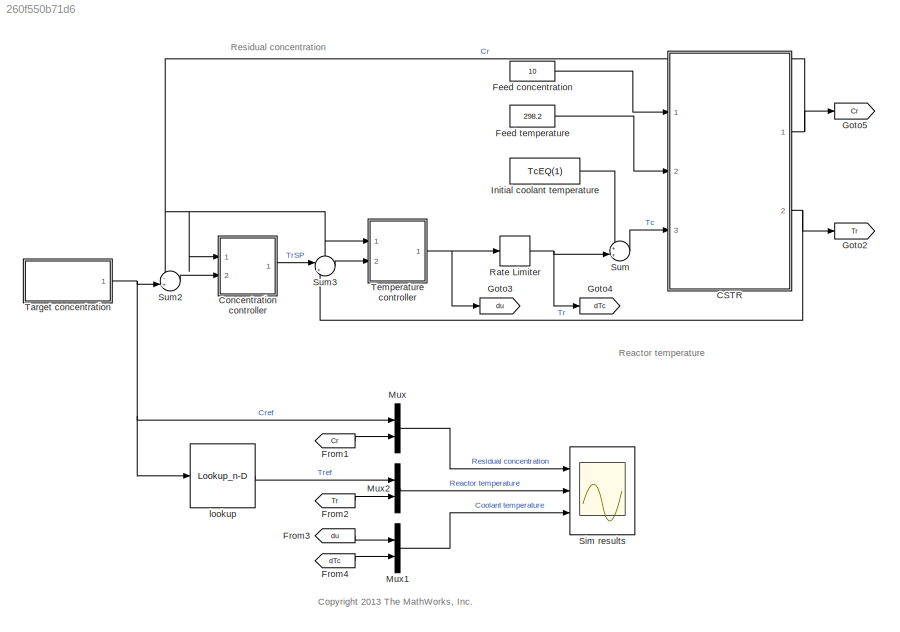
MODEL slx_260f550b71d6
KIND model
CONFIG AbsTol = auto
CONFIG EnableMultiTasking = on
CONFIG FixedStep = auto
CONFIG MaxStep = auto
CONFIG MinStep = auto
CONFIG PreLoadFcn = Ts = 0.5;\nload CSTRData
CONFIG RelTol = 1e-3
CONFIG SampleTimeConstraint = Unconstrained
CONFIG SolverName = ode45
CONFIG StartTime = 0
CONFIG StopTime = 50
WORKSPACE source: mxarray member
WORKSPACE Cr_vec = [2 2.5 3 3.5 4 4.5 5 5.5 6 6.5 7 7.5 ... (15 elements, 1x15)]
WORKSPACE Ki_vec = [-2 -2 -2 -2 -2 -2 -2 -2 -2 -2 -2 -2 ... (15 elements, 1x15)]
WORKSPACE Kp_vec = [0 0 0 0 0 0 0 0 0 0 0 0 ... (15 elements, 1x15)]
WORKSPACE Kt_vec = [0 0 0 0 0 0 0 0 0 0 0 0 ... (15 elements, 1x15)]
WORKSPACE a_vec = [0 0 0 0 0 0 0 0 0 0 0 0 ... (15 elements, 1x15)]
WORKSPACE b_vec = [0 0 0 0 0 0 0 0 0 0 0 0 ... (15 elements, 1x15)]
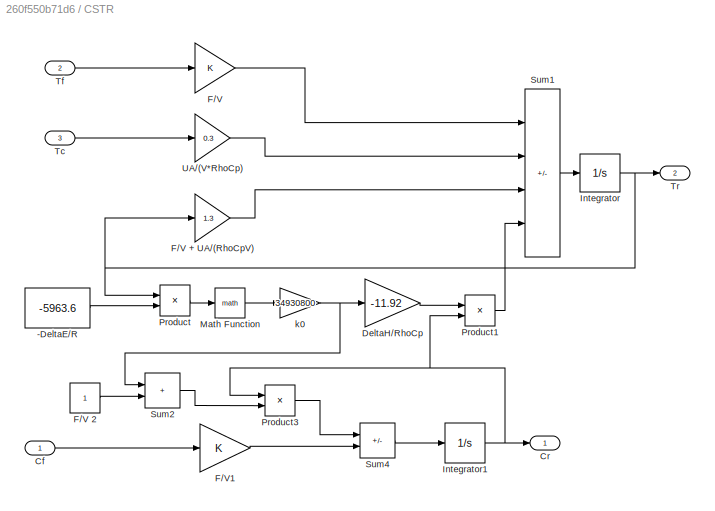
BLOCK [SubSystem] CSTR
  Ports = [3, 2]
  RequestExecContextInheritance = off
BLOCK [Constant] CSTR/-DeltaE//R
  SampleTime = 0
  Value = -5963.6
BLOCK [Inport] CSTR/Cf
BLOCK [Outport] CSTR/Cr
BLOCK [Gain] CSTR/DeltaH//RhoCp
  Gain = -11.92
  OutDataTypeStr = Inherit: Same as input
  ParamDataTypeStr = Inherit: Same as input
  SaturateOnIntegerOverflow = on
BLOCK [Gain] CSTR/F//V
  OutDataTypeStr = Inherit: Same as input
  ParamDataTypeStr = Inherit: Same as input
  SaturateOnIntegerOverflow = on
BLOCK [Gain] CSTR/F//V + UA//(RhoCpV)
  Gain = 1.3
  OutDataTypeStr = Inherit: Same as input
  ParamDataTypeStr = Inherit: Same as input
  SaturateOnIntegerOverflow = on
BLOCK [Constant] CSTR/F//V 2
  SampleTime = 0
BLOCK [Gain] CSTR/F//V1
  OutDataTypeStr = Inherit: Same as input
  ParamDataTypeStr = Inherit: Same as input
  SaturateOnIntegerOverflow = on
BLOCK [Integrator] CSTR/Integrator
  InitialCondition = 311.26
  LimitOutput = on
  LowerSaturationLimit = 0
  Ports = [1, 1]
BLOCK [Integrator] CSTR/Integrator1
  InitialCondition = 8.57
  LimitOutput = on
  LowerSaturationLimit = 0
  Ports = [1, 1]
BLOCK [Math] CSTR/Math Function
  Ports = [1, 1]
  SignedPower = on
BLOCK [Product] CSTR/Product
  InputSameDT = on
  Inputs = /*
  OutDataTypeStr = Inherit: Same as first input
  Ports = [2, 1]
  RndMeth = Zero
  SaturateOnIntegerOverflow = on
BLOCK [Product] CSTR/Product1
  InputSameDT = on
  OutDataTypeStr = Inherit: Same as first input
  Ports = [2, 1]
  RndMeth = Zero
  SaturateOnIntegerOverflow = on
BLOCK [Product] CSTR/Product3
  InputSameDT = on
  OutDataTypeStr = Inherit: Same as first input
  Ports = [2, 1]
  RndMeth = Zero
  SaturateOnIntegerOverflow = on
BLOCK [Sum] CSTR/Sum1
  IconShape = rectangular
  InputSameDT = on
  Inputs = ++--
  OutDataTypeStr = Inherit: Same as first input
  Ports = [4, 1]
  SaturateOnIntegerOverflow = on
BLOCK [Sum] CSTR/Sum2
  IconShape = rectangular
  InputSameDT = on
  OutDataTypeStr = Inherit: Same as first input
  Ports = [2, 1]
  SaturateOnIntegerOverflow = on
BLOCK [Sum] CSTR/Sum4
  IconShape = rectangular
  InputSameDT = on
  Inputs = -+
  OutDataTypeStr = Inherit: Same as first input
  Ports = [2, 1]
  SaturateOnIntegerOverflow = on
BLOCK [Inport] CSTR/Tc
  Port = 3
BLOCK [Inport] CSTR/Tf
  Port = 2
BLOCK [Outport] CSTR/Tr
  Port = 2
BLOCK [Gain] CSTR/UA//(V*RhoCp)
  Gain = 0.3
  OutDataTypeStr = Inherit: Same as input
  ParamDataTypeStr = Inherit: Same as input
  SaturateOnIntegerOverflow = on
BLOCK [Gain] CSTR/k0
  Gain = 34930800
  OutDataTypeStr = Inherit: Same as input
  ParamDataTypeStr = Inherit: Same as input
  SaturateOnIntegerOverflow = on
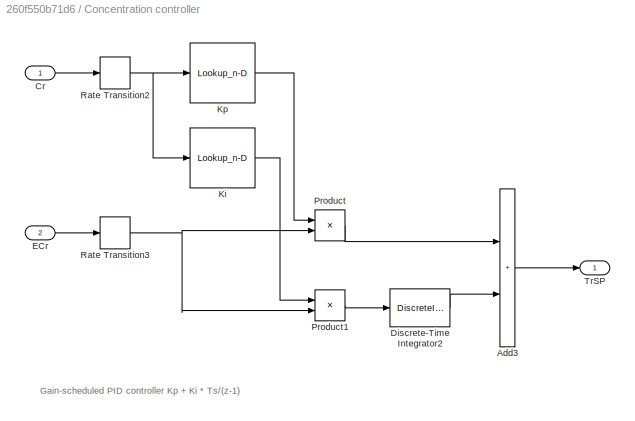
BLOCK [SubSystem] Concentration controller
  Ports = [2, 1]
  RequestExecContextInheritance = off
BLOCK [Sum] Concentration controller/Add3
  IconShape = rectangular
  Ports = [2, 1]
BLOCK [Inport] Concentration controller/Cr
BLOCK [DiscreteIntegrator] Concentration controller/Discrete-Time Integrator2
  ICPrevOutput = DiscIntNeverNeededParam
  ICPrevScaledInput = DiscIntNeverNeededParam
  InitialCondition = TrEQ(1)
  Ports = [1, 1]
  SampleTime = Ts
BLOCK [Inport] Concentration controller/ECr
  Port = 2
BLOCK [Lookup_n-D] Concentration controller/Ki
  BreakpointsForDimension1 = Cr_vec
  InputPortMap = u0
  InternalRulePriority = Speed
  LookupTableObject = ''
  NumberOfTableDimensions = 1
  Ports = [1, 1]
  RndMeth = Simplest
  Table = Ki_vec
BLOCK [Lookup_n-D] Concentration controller/Kp
  BreakpointsForDimension1 = Cr_vec
  InputPortMap = u0
  InternalRulePriority = Speed
  LookupTableObject = ''
  NumberOfTableDimensions = 1
  Ports = [1, 1]
  RndMeth = Simplest
  Table = Kp_vec
BLOCK [Product] Concentration controller/Product
  Ports = [2, 1]
BLOCK [Product] Concentration controller/Product1
  Ports = [2, 1]
BLOCK [RateTransition] Concentration controller/Rate Transition2
  OutPortSampleTime = Ts
BLOCK [RateTransition] Concentration controller/Rate Transition3
  OutPortSampleTime = Ts
BLOCK [Outport] Concentration controller/TrSP
BLOCK [Constant] Feed concentration
  SampleTime = 0
  Value = 10
BLOCK [Constant] Feed temperature
  SampleTime = 0
  Value = 298.2
BLOCK [From] From1
  GotoTag = Cr
  TagVisibility = global
BLOCK [From] From2
  GotoTag = Tr
BLOCK [From] From3
  GotoTag = du
BLOCK [From] From4
  GotoTag = dTc
BLOCK [Goto] Goto2
  GotoTag = Tr
BLOCK [Goto] Goto3
  GotoTag = du
BLOCK [Goto] Goto4
  GotoTag = dTc
BLOCK [Goto] Goto5
  GotoTag = Cr
  TagVisibility = global
BLOCK [Constant] Initial coolant temperature
  SampleTime = 0
  Value = TcEQ(1)
BLOCK [Mux] Mux
  DisplayOption = bar
  Inputs = 2
  Ports = [2, 1]
BLOCK [Mux] Mux1
  DisplayOption = bar
  Inputs = 2
  Ports = [2, 1]
BLOCK [Mux] Mux2
  DisplayOption = bar
  Inputs = 2
  Ports = [2, 1]
BLOCK [RateLimiter] Rate Limiter
  FallingSlewLimit = -10
  RisingSlewLimit = 10
  SampleTimeMode = inherited
BLOCK [Scope] Sim results
  Floating = off
  NumInputPorts = 3
  Ports = [3]
  ScopeSpecificationString = Simulink.scopes.TimeScopeBlockCfg('CurrentConfiguration', extmgr.ConfigurationSet(extmgr.Configuration('Core','General UI',true),extmgr.Configuration('Core','Source UI',true),extmgr.Configuration('Sources','WiredSimulink',true,'SampleTime','Ts'),extmgr.Configuration('Visuals','Time Domain',true,'SerializedDisplays',{struct('MinYLimReal','1.17874','MaxYLimReal','9.39131','YLabelReal','','MinYLimMag...<+2822ch>
BLOCK [Sum] Sum
  Inputs = ++|
  Ports = [2, 1]
BLOCK [Sum] Sum2
  Inputs = -+|
  Ports = [2, 1]
BLOCK [Sum] Sum3
  Inputs = |+-
  Ports = [2, 1]
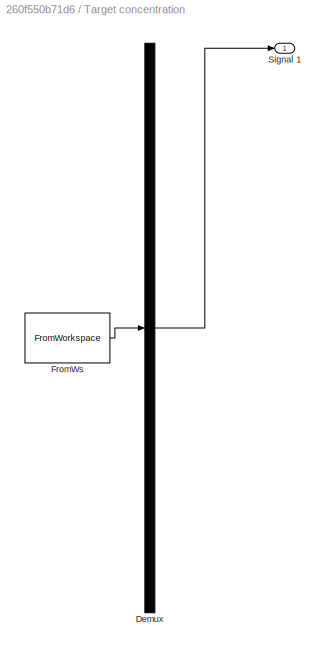
BLOCK [SubSystem] Target concentration
  ClipboardFcn = sigbuilder_block('clipboard');
  CloseFcn = sigbuilder_block('close');
  ContinueFcn = sigbuilder_block('continue');
  CopyFcn = sigbuilder_block('copy');
  DeleteFcn = sigbuilder_block('delete');
  LoadFcn = sigbuilder_block('load');
  MaskHideContents = on
  ModelCloseFcn = sigbuilder_block('modelClose');
  NameChangeFcn = sigbuilder_block('namechange');
  OpenFcn = sigbuilder_block('open',[358.5 207 550.5 395.25 ]);
  PauseFcn = sigbuilder_block('pause');
  Ports = [0, 1]
  PreSaveFcn = sigbuilder_block('preSave');
  RequestExecContextInheritance = off
  StartFcn = sigbuilder_block('start');
  StopFcn = sigbuilder_block('stop');
  Tag = STV Subsys
BLOCK [Demux] Target concentration/Demux
  DisplayOption = none
  Outputs = 1
  Ports = [1, 1]
  Tag = STV Demux
BLOCK [FromWorkspace] Target concentration/FromWs
  Tag = STV FromWs
  VariableName = tuvar
BLOCK [Outport] Target concentration/Signal 1
  Tag = STV Outport
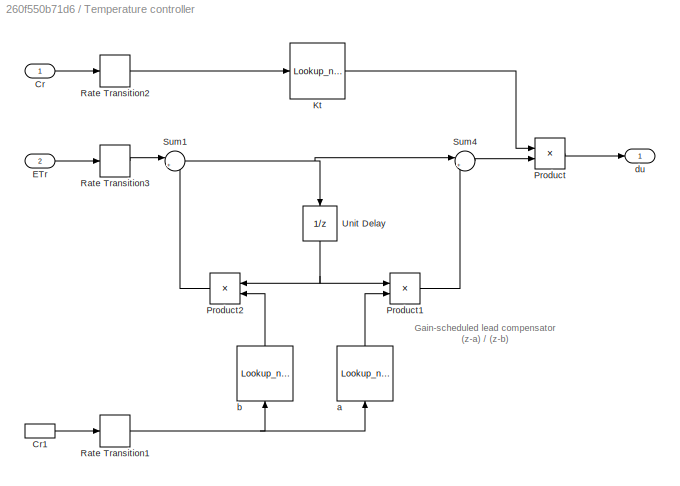
BLOCK [SubSystem] Temperature controller
  Ports = [2, 1]
  RequestExecContextInheritance = off
BLOCK [Inport] Temperature controller/Cr
BLOCK [InportShadow] Temperature controller/Cr1
BLOCK [Inport] Temperature controller/ETr
  Port = 2
BLOCK [Lookup_n-D] Temperature controller/Kt
  BreakpointsForDimension1 = Cr_vec
  InputPortMap = u0
  InternalRulePriority = Speed
  LookupTableObject = ''
  NumberOfTableDimensions = 1
  Ports = [1, 1]
  RndMeth = Simplest
  Table = Kt_vec
BLOCK [Product] Temperature controller/Product
  Ports = [2, 1]
BLOCK [Product] Temperature controller/Product1
  Ports = [2, 1]
BLOCK [Product] Temperature controller/Product2
  Ports = [2, 1]
BLOCK [RateTransition] Temperature controller/Rate Transition1
  OutPortSampleTime = Ts
BLOCK [RateTransition] Temperature controller/Rate Transition2
  OutPortSampleTime = Ts
BLOCK [RateTransition] Temperature controller/Rate Transition3
  OutPortSampleTime = Ts
BLOCK [Sum] Temperature controller/Sum1
  Inputs = |++
  Ports = [2, 1]
BLOCK [Sum] Temperature controller/Sum4
  Inputs = |+-
  Ports = [2, 1]
BLOCK [UnitDelay] Temperature controller/Unit Delay
  HasFrameUpgradeWarning = on
  NameLocation = left
  SampleTime = Ts
BLOCK [Lookup_n-D] Temperature controller/a
  BreakpointsForDimension1 = Cr_vec
  InputPortMap = u0
  InternalRulePriority = Speed
  LookupTableObject = ''
  NameLocation = right
  NumberOfTableDimensions = 1
  Ports = [1, 1]
  RndMeth = Simplest
  Table = a_vec
BLOCK [Lookup_n-D] Temperature controller/b
  BreakpointsForDimension1 = Cr_vec
  InputPortMap = u0
  InternalRulePriority = Speed
  LookupTableObject = ''
  NameLocation = right
  NumberOfTableDimensions = 1
  Ports = [1, 1]
  RndMeth = Simplest
  Table = b_vec
BLOCK [Outport] Temperature controller/du
BLOCK [Lookup_n-D] lookup
  BreakpointsForDimension1 = flipud(CrEQ)
  InputPortMap = u0
  LookupTableObject = ''
  NumberOfTableDimensions = 1
  Ports = [1, 1]
  RndMeth = Simplest
  Table = flipud(TrEQ)
ANNOTATION (root): <copyright redacted>
ANNOTATION (root): Reactor temperature
ANNOTATION (root): Residual concentration
ANNOTATION Concentration controller: Gain-scheduled PID controller Kp + Ki * Ts/(z-1)
ANNOTATION Temperature controller: Gain-scheduled lead compensator (z-a) / (z-b)
LINE CSTR/-DeltaE//R:1 -> CSTR/Product:2
LINE CSTR/Cf:1 -> CSTR/F//V1:1
LINE CSTR/DeltaH//RhoCp:1 -> CSTR/Product1:1
LINE CSTR/F//V + UA//(RhoCpV):1 -> CSTR/Sum1:3
LINE CSTR/F//V 2:1 -> CSTR/Sum2:2
LINE CSTR/F//V1:1 -> CSTR/Sum4:2
LINE CSTR/F//V:1 -> CSTR/Sum1:1
NET CSTR/Integrator1:1 -> CSTR/Cr:1, CSTR/Product1:2, CSTR/Product3:1
NET CSTR/Integrator:1 -> CSTR/F//V + UA//(RhoCpV):1, CSTR/Product:1, CSTR/Tr:1
LINE CSTR/Math Function:1 -> CSTR/k0:1
LINE CSTR/Product1:1 -> CSTR/Sum1:4
LINE CSTR/Product3:1 -> CSTR/Sum4:1
LINE CSTR/Product:1 -> CSTR/Math Function:1
LINE CSTR/Sum1:1 -> CSTR/Integrator:1
LINE CSTR/Sum2:1 -> CSTR/Product3:2
LINE CSTR/Sum4:1 -> CSTR/Integrator1:1
LINE CSTR/Tc:1 -> CSTR/UA//(V*RhoCp):1
LINE CSTR/Tf:1 -> CSTR/F//V:1
LINE CSTR/UA//(V*RhoCp):1 -> CSTR/Sum1:2
NET CSTR/k0:1 -> CSTR/DeltaH//RhoCp:1, CSTR/Sum2:1
NET CSTR:1 -> Concentration controller:1, Goto5:1, Sum2:1, Temperature controller:1
NET CSTR:2 -> Goto2:1, Sum3:2
LINE Concentration controller/Add3:1 -> Concentration controller/TrSP:1
LINE Concentration controller/Cr:1 -> Concentration controller/Rate Transition2:1
LINE Concentration controller/Discrete-Time Integrator2:1 -> Concentration controller/Add3:2
LINE Concentration controller/ECr:1 -> Concentration controller/Rate Transition3:1
LINE Concentration controller/Ki:1 -> Concentration controller/Product1:1
LINE Concentration controller/Kp:1 -> Concentration controller/Product:1
LINE Concentration controller/Product1:1 -> Concentration controller/Discrete-Time Integrator2:1
LINE Concentration controller/Product:1 -> Concentration controller/Add3:1
NET Concentration controller/Rate Transition2:1 -> Concentration controller/Ki:1, Concentration controller/Kp:1
NET Concentration controller/Rate Transition3:1 -> Concentration controller/Product1:2, Concentration controller/Product:2
LINE Concentration controller:1 -> Sum3:1
LINE Feed concentration:1 -> CSTR:1
LINE Feed temperature:1 -> CSTR:2
LINE From1:1 -> Mux:2
LINE From2:1 -> Mux2:2
LINE From3:1 -> Mux1:1
LINE From4:1 -> Mux1:2
LINE Initial coolant temperature:1 -> Sum:1
LINE Mux1:1 -> Sim results:3
LINE Mux2:1 -> Sim results:2
LINE Mux:1 -> Sim results:1
NET Rate Limiter:1 -> Goto4:1, Sum:2
LINE Sum2:1 -> Concentration controller:2
LINE Sum3:1 -> Temperature controller:2
LINE Sum:1 -> CSTR:3
NET Target concentration:1 -> Mux:1, Sum2:2, lookup:1
LINE Temperature controller/Cr1:1 -> Temperature controller/Rate Transition1:1
LINE Temperature controller/Cr:1 -> Temperature controller/Rate Transition2:1
LINE Temperature controller/ETr:1 -> Temperature controller/Rate Transition3:1
LINE Temperature controller/Kt:1 -> Temperature controller/Product:1
LINE Temperature controller/Product1:1 -> Temperature controller/Sum4:2
LINE Temperature controller/Product2:1 -> Temperature controller/Sum1:2
LINE Temperature controller/Product:1 -> Temperature controller/du:1
NET Temperature controller/Rate Transition1:1 -> Temperature controller/a:1, Temperature controller/b:1
LINE Temperature controller/Rate Transition2:1 -> Temperature controller/Kt:1
LINE Temperature controller/Rate Transition3:1 -> Temperature controller/Sum1:1
NET Temperature controller/Sum1:1 -> Temperature controller/Sum4:1, Temperature controller/Unit Delay:1
LINE Temperature controller/Sum4:1 -> Temperature controller/Product:2
NET Temperature controller/Unit Delay:1 -> Temperature controller/Product1:1, Temperature controller/Product2:1
LINE Temperature controller/a:1 -> Temperature controller/Product1:2
LINE Temperature controller/b:1 -> Temperature controller/Product2:2
NET Temperature controller:1 -> Goto3:1, Rate Limiter:1
LINE lookup:1 -> Mux2:1
note: NET lines group one-source signal fan-out (src -> all destinations, sorted); 1:1 wires keep LINE
